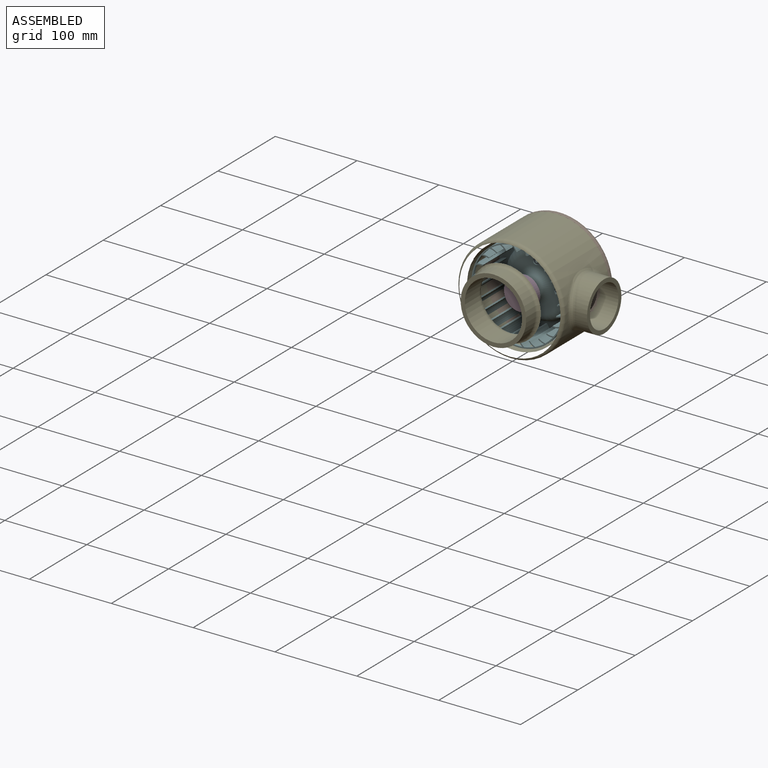
[diagram: assembled view]
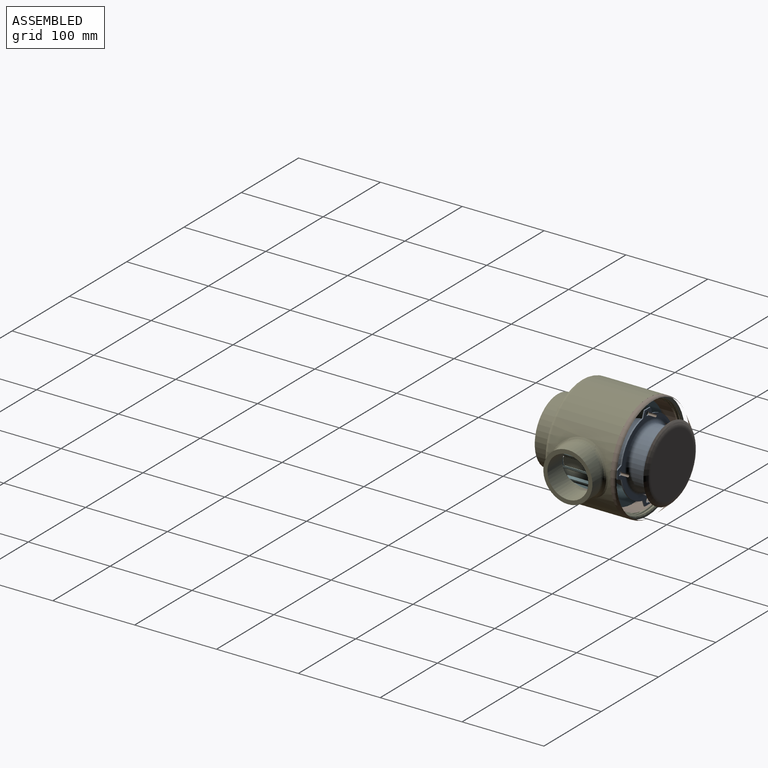
[diagram: assembled view, second angle]
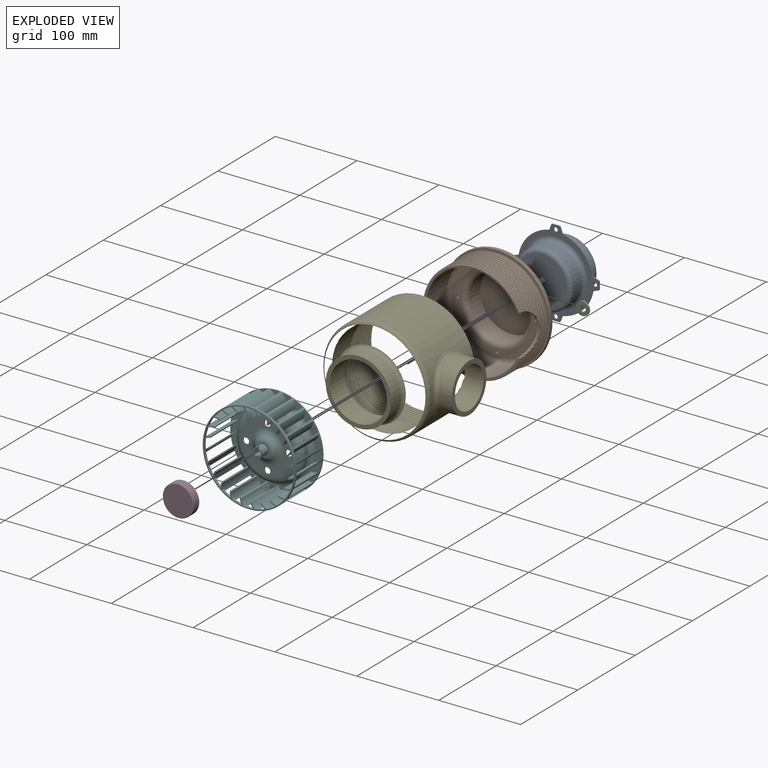
[diagram: exploded view]
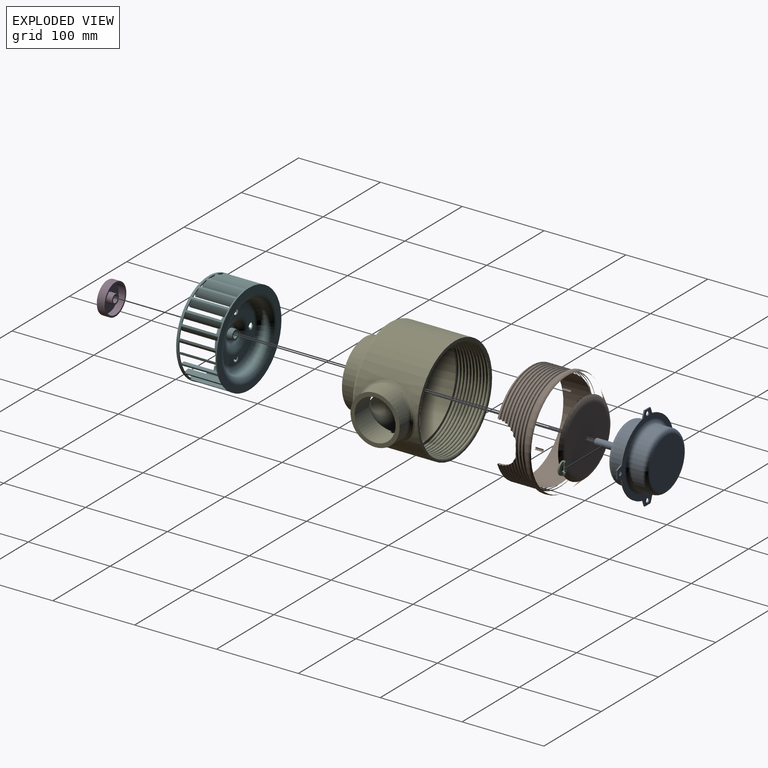
[diagram: exploded view, second angle]
ASSEMBLY  parts=6 mates=11
PART A: 34 faces, bbox 106x86x106 mm
  f0: plane 8x6mm, normal (0,-1,0), area 40.4mm2, adj f31,f32
  f1: plane 60x60mm, normal (0,-1,0), area 2777.2mm2, adj f3,f31
  f2: cylinder r=35mm len=70mm, axis (0,-1,0), area 2913.8mm2, adj f3,f30
  f3: torus R=30mm, axis (0,-1,0), area 1637.5mm2, adj f1,f2
  f4: plane 7.7x3mm, normal (-0.36,0,-0.93), area 12.4mm2, adj f5,f22,f24,f25
  f5: cylinder r=46mm len=37.3mm, axis (0,1,0), area 84.3mm2, adj f4,f6,f24,f25
  f6: plane 7.7x3mm, normal (-0.93,0,-0.36), area 12.4mm2, adj f5,f7,f24,f25
  f7: plane 10x1.5mm, normal (0,0,-1), area 15mm2, adj f6,f8,f24,f25
  f8: plane 7.7x3mm, normal (0.93,0,-0.36), area 12.4mm2, adj f7,f9,f24,f25
  f9: cylinder r=46mm len=37.3mm, axis (0,1,0), area 84.3mm2, adj f8,f10,f24,f25
  f10: plane 7.7x3mm, normal (0.36,0,-0.93), area 12.4mm2, adj f9,f11,f24,f25
  f11: plane 10x1.5mm, normal (1,0,0), area 15mm2, adj f10,f12,f24,f25
  f12: plane 7.7x3mm, normal (0.36,0,0.93), area 12.4mm2, adj f11,f13,f24,f25
  f13: cylinder r=46mm len=37.3mm, axis (0,1,0), area 84.3mm2, adj f12,f14,f24,f25
  f14: plane 7.7x3mm, normal (0.93,0,0.36), area 12.4mm2, adj f13,f15,f24,f25
  f15: plane 10x1.5mm, normal (0,0,1), area 15mm2, adj f14,f16,f24,f25
  f16: plane 7.7x3mm, normal (-0.93,0,0.36), area 12.4mm2, adj f15,f17,f24,f25
  f17: cylinder r=46mm len=37.3mm, axis (0,1,0), area 84.3mm2, adj f16,f18,f24,f25
  f18: plane 7.7x3mm, normal (-0.36,0,0.93), area 12.4mm2, adj f17,f22,f24,f25
  f19: cylinder r=2.6mm len=5.2mm, axis (0,1,0), area 24.5mm2, adj f24,f25
  f20: cylinder r=2.6mm len=5.2mm, axis (0,1,0), area 24.5mm2, adj f24,f25
  f21: cylinder r=2.6mm len=5.2mm, axis (0,1,0), area 24.5mm2, adj f24,f25
  f22: plane 10x1.5mm, normal (-1,0,0), area 15mm2, adj f4,f18,f24,f25
  f23: cylinder r=2.6mm len=5.2mm, axis (0,1,0), area 24.5mm2, adj f24,f25
  f24: plane 106x106mm, normal (0,-1,0), area 1906.6mm2, adj f4,f5,f6,f7,f8,f9,f10,f11
  f25: plane 106x106mm, normal (0,1,0), area 1906.6mm2, adj f4,f5,f6,f7,f8,f9,f10,f11
  f26: plane 60x60mm, normal (0,1,0), area 2827.4mm2, adj f27
  f27: torus R=30mm, axis (0,-1,0), area 1637.5mm2, adj f26,f28
  f28: cylinder r=35mm len=70mm, axis (0,-1,0), area 2913.8mm2, adj f27,f29
  f29: torus R=40mm, axis (0,-1,0), area 1816.8mm2, adj f25,f28
  f30: torus R=40mm, axis (0,-1,0), area 1816.8mm2, adj f2,f24
  f31: cylinder r=4mm len=38mm, axis (0,1,0), area 854.5mm2, adj f0,f1,f32,f33
  f32: plane 12x6.93mm, normal (-1,0,0), area 83.1mm2, adj f0,f31,f33
  f33: plane 6.93x2mm, normal (0,-1,0), area 9.8mm2, adj f31,f32
PART B: 37 faces, bbox 142.7x76.6x149.8 mm
  f0: cylinder r=62.5mm len=125mm, axis (0,-1,0), area 1662.2mm2, adj f1,f7,f8,f36
  f1: plane 131.94x131.94mm, normal (0,-1,0), area 1346.5mm2, adj f0,f2,f7
  f2: cylinder r=65mm len=130mm, axis (0,1,0), area 1258.4mm2, adj f1,f3
  f3: torus R=60mm, axis (0,-1,0), area 1486.4mm2, adj f2,f4
  f4: cone r=65mm half-angle=42deg, axis (0,-1,0), area 9352.1mm2, adj f3,f5
  f5: torus R=38.05mm, axis (0,1,0), area 2211.2mm2, adj f4,f6
  f6: plane 76.09x76.09mm, normal (0,1,0), area 4547.5mm2, adj f5
  f7: bspline ~147.8x128mm, area 6780.8mm2, adj f0,f1,f36
  f8: bspline ~147.8x128mm, area 1705.2mm2, adj f0,f9,f36
  f9: cylinder r=62.5mm len=125mm, axis (0,-1,0), area 360.4mm2, adj f8,f10,f36
  f10: bspline ~147.8x128mm, area 1652.5mm2, adj f9,f11,f36
  f11: cylinder r=62.5mm len=125mm, axis (0,-1,0), area 352.3mm2, adj f10,f12,f36
  f12: bspline ~147.8x128mm, area 1621.7mm2, adj f11,f13,f36
  f13: cylinder r=62.5mm len=125mm, axis (0,-1,0), area 347mm2, adj f12,f14,f36
  f14: bspline ~147.8x128mm, area 1601.5mm2, adj f13,f15,f36
  f15: cylinder r=62.5mm len=125mm, axis (0,-1,0), area 343.6mm2, adj f14,f16,f36
  f16: bspline ~147.8x128mm, area 1589.5mm2, adj f15,f17,f36
  f17: cylinder r=62.5mm len=125mm, axis (0,-1,0), area 341.8mm2, adj f16,f18,f36
  f18: bspline ~147.8x128mm, area 1574.1mm2, adj f17,f19,f21,f36
  f19: cylinder r=62.5mm len=125mm, axis (0,-1,0), area 269.1mm2, adj f18,f20,f21,f36
  f20: bspline ~129.33x128mm, area 373mm2, adj f19,f21,f36
  f21: plane 125.49x119.81mm, normal (0,-1,0), area 869.8mm2, adj f18,f19,f20,f22,f36
  f22: cylinder r=59mm len=118mm, axis (0,1,0), area 11866.4mm2, adj f21,f23,f36
  f23: torus R=54mm, axis (0,-1,0), area 2821.9mm2, adj f22,f24
  f24: plane 108x108mm, normal (0,-1,0), area 3187.9mm2, adj f23,f25,f27,f29,f31,f33
  f25: cylinder r=1.5mm len=10mm, axis (0,-1,0), area 94.2mm2, adj f24,f26
  f26: plane 3x3mm, normal (0,-1,0), area 7.1mm2, adj f25
  f27: cylinder r=1.5mm len=10mm, axis (0,-1,0), area 94.2mm2, adj f24,f28
  f28: plane 3x3mm, normal (0,-1,0), area 7.1mm2, adj f27
  f29: cylinder r=1.5mm len=10mm, axis (0,-1,0), area 94.2mm2, adj f24,f30
  f30: plane 3x3mm, normal (0,-1,0), area 7.1mm2, adj f29
  f31: cylinder r=1.5mm len=10mm, axis (0,-1,0), area 94.2mm2, adj f24,f32
  f32: plane 3x3mm, normal (0,-1,0), area 7.1mm2, adj f31
  f33: torus R=43.5mm, axis (0,-1,0), area 2349.8mm2, adj f24,f34
  f34: cylinder r=37.5mm len=75mm, axis (0,-1,0), area 4476.8mm2, adj f33,f35
  f35: plane 75x75mm, normal (0,-1,0), area 4417.9mm2, adj f34
  f36: cylinder r=25mm len=50mm, axis (1,0,0), area 230.6mm2, adj f0,f7,f8,f9,f10,f11,f12,f13
PART C: 24 faces, bbox 16x16x4.4 mm
  f0: plane 16x8mm, normal (0,0,1), area 78.7mm2, adj f2,f3,f4,f6,f9,f12,f13,f14
  f1: plane 16x8mm, normal (0,0,1), area 68.9mm2, adj f2,f4,f7,f10,f12,f13,f14,f15
  f2: cylinder r=4mm len=8mm, axis (0,0,-1), area 33.5mm2, adj f0,f1,f3,f5
  f3: plane 6.93x2mm, normal (0,-1,0), area 13.9mm2, adj f0,f2,f5
  f4: cylinder r=8mm len=16mm, axis (0,0,-1), area 100.5mm2, adj f0,f1,f5
  f5: plane 16x16mm, normal (0,0,-1), area 160.6mm2, adj f2,f3,f4
  f6: plane 2.2x1.9mm, normal (0,1,0), area 4.2mm2, adj f0,f12,f13,f23
  f7: plane 2.2x1.9mm, normal (0,-1,0), area 4.2mm2, adj f1,f12,f13,f20
  f8: plane 3x0.8mm, normal (0,0,1), area 2.3mm2, adj f20,f21,f22,f23
  f9: plane 2.2x1.9mm, normal (0,1,0), area 4.2mm2, adj f0,f14,f15,f19
  f10: plane 2.2x1.9mm, normal (0,-1,0), area 4.2mm2, adj f1,f14,f15,f16
  f11: plane 3x0.8mm, normal (0,0,1), area 2.3mm2, adj f16,f17,f18,f19
  f12: cylinder r=0.9mm len=1.9mm, axis (0,0,-1), area 5.4mm2, adj f0,f1,f6,f7,f21
  f13: cylinder r=0.9mm len=1.9mm, axis (0,0,-1), area 5.4mm2, adj f0,f1,f6,f7,f22
  f14: cylinder r=0.9mm len=1.9mm, axis (0,0,-1), area 5.4mm2, adj f0,f1,f9,f10,f17
  f15: cylinder r=0.9mm len=1.9mm, axis (0,0,-1), area 5.4mm2, adj f0,f1,f9,f10,f18
  f16: cylinder r=0.5mm len=2.2mm, axis (-1,0,0), area 1.7mm2, adj f10,f11,f17,f18
  f17: torus R=0.4mm, axis (0,0,1), area 1.8mm2, adj f11,f14,f16,f19
  f18: torus R=0.4mm, axis (0,0,1), area 1.8mm2, adj f11,f15,f16,f19
  f19: cylinder r=0.5mm len=2.2mm, axis (1,0,0), area 1.7mm2, adj f9,f11,f17,f18
  f20: cylinder r=0.5mm len=2.2mm, axis (-1,0,0), area 1.7mm2, adj f7,f8,f21,f22
  f21: torus R=0.4mm, axis (0,0,1), area 1.8mm2, adj f8,f12,f20,f23
  f22: torus R=0.4mm, axis (0,0,1), area 1.8mm2, adj f8,f13,f20,f23
  f23: cylinder r=0.5mm len=2.2mm, axis (1,0,0), area 1.7mm2, adj f6,f8,f21,f22
PART D: 10 faces, bbox 41.1x10x41.1 mm
  f0: cylinder r=19mm len=38mm, axis (0,1,0), area 1074.4mm2, adj f2,f9
  f1: plane 36x36mm, normal (0,-1,0), area 1017.9mm2, adj f9
  f2: plane 38x38mm, normal (0,1,0), area 226.2mm2, adj f0,f4
  f3: plane 34x34mm, normal (0,1,0), area 794.8mm2, adj f4,f5
  f4: cylinder r=17mm len=34mm, axis (0,1,0), area 854.5mm2, adj f2,f3
  f5: cylinder r=6mm len=12mm, axis (0,1,0), area 301.6mm2, adj f3,f8
  f6: plane 8x8mm, normal (0,1,0), area 50.3mm2, adj f7
  f7: cylinder r=4mm len=8mm, axis (0,1,0), area 201.1mm2, adj f6,f8
  f8: plane 12x12mm, normal (0,1,0), area 62.8mm2, adj f5,f7
  f9: torus R=18mm, axis (0,-1,0), area 183.9mm2, adj f0,f1
PART E: 32 faces, bbox 157.3x116.6x149.8 mm
  f0: cylinder r=62.5mm len=125mm, axis (0,-1,0), area 1662.2mm2, adj f1,f29,f30,f31
  f1: bspline ~147.8x128mm, area 1705.2mm2, adj f0,f2,f31
  f2: cylinder r=62.5mm len=125mm, axis (0,-1,0), area 360.4mm2, adj f1,f3,f31
  f3: bspline ~147.8x128mm, area 1652.5mm2, adj f2,f4,f31
  f4: cylinder r=62.5mm len=125mm, axis (0,-1,0), area 352.3mm2, adj f3,f5,f31
  f5: bspline ~147.8x128mm, area 1621.7mm2, adj f4,f6,f31
  f6: cylinder r=62.5mm len=125mm, axis (0,-1,0), area 347mm2, adj f5,f7,f31
  f7: bspline ~147.8x128mm, area 1601.5mm2, adj f6,f8,f31
  f8: cylinder r=62.5mm len=125mm, axis (0,-1,0), area 343.6mm2, adj f7,f9,f31
  f9: bspline ~147.8x128mm, area 1589.5mm2, adj f8,f10,f31
  f10: cylinder r=62.5mm len=125mm, axis (0,-1,0), area 341.8mm2, adj f9,f11,f31
  f11: bspline ~147.8x128mm, area 1573.2mm2, adj f10,f12,f28,f31
  f12: plane 125.49x119.81mm, normal (0,1,0), area 869.8mm2, adj f11,f13,f14,f28,f31
  f13: bspline ~129.33x128mm, area 373mm2, adj f12,f28,f31
  f14: cylinder r=59mm len=118mm, axis (0,1,0), area 10219mm2, adj f12,f15,f31
  f15: torus R=54mm, axis (0,-1,0), area 2821.9mm2, adj f14,f16
  f16: plane 108x108mm, normal (0,1,0), area 2799.2mm2, adj f15,f17
  f17: torus R=45mm, axis (0,-1,0), area 3813mm2, adj f16,f18
  f18: cylinder r=35mm len=70mm, axis (0,-1,0), area 5497.8mm2, adj f17,f19
  f19: plane 80x80mm, normal (0,-1,0), area 1178.1mm2, adj f18,f20
  f20: cylinder r=40mm len=80mm, axis (0,1,0), area 4175.8mm2, adj f19,f21
  f21: torus R=45mm, axis (0,1,0), area 1536.9mm2, adj f20,f22
  f22: cone r=40mm half-angle=68.2deg, axis (0,1,0), area 6648.6mm2, adj f21,f23
  f23: torus R=60mm, axis (0,-1,0), area 2389.5mm2, adj f22,f24
  f24: cylinder r=65mm len=130mm, axis (0,1,0), area 27574.4mm2, adj f23,f25,f29
  f25: bspline ~70.01x65.02mm, area 1312.6mm2, adj f24,f26
  f26: cylinder r=30mm len=60mm, axis (1,0,0), area 3693.6mm2, adj f25,f27
  f27: plane 60x60mm, normal (1,0,0), area 863.9mm2, adj f26,f31
  f28: cylinder r=62.5mm len=125mm, axis (0,-1,0), area 269.1mm2, adj f11,f12,f13,f31
  f29: plane 131.94x131.94mm, normal (0,1,0), area 1346.5mm2, adj f0,f24,f30
  f30: bspline ~147.8x128mm, area 6780.8mm2, adj f0,f29,f31
  f31: cylinder r=25mm len=50mm, axis (1,0,0), area 4283.7mm2, adj f0,f1,f2,f3,f4,f5,f6,f7
PART F: 199 faces, bbox 116.2x116.2x49.5 mm
  f0: cylinder r=3.75mm len=7.5mm, axis (0,0,-1), area 35.3mm2, adj f80,f86
  f1: cylinder r=3.75mm len=7.5mm, axis (0,0,-1), area 35.3mm2, adj f80,f86
  f2: cylinder r=3.75mm len=7.5mm, axis (0,0,-1), area 35.3mm2, adj f80,f86
  f3: plane 11.78x4.85mm, normal (0,0,-1), area 26.8mm2, adj f92,f94,f194,f195
  f4: cylinder r=15mm len=48mm, axis (0,0,1), area 511.4mm2, adj f75,f76,f95,f96,f120,f121
  f5: cylinder r=16.5mm len=48mm, axis (0,0,1), area 495.4mm2, adj f74,f76,f95,f96,f189,f191
  f6: cylinder r=15mm len=48mm, axis (0,0,1), area 511.4mm2, adj f74,f76,f96,f97,f189,f191
  f7: cylinder r=16.5mm len=48mm, axis (0,0,1), area 495.4mm2, adj f73,f76,f96,f97,f186,f187
  f8: cylinder r=15mm len=48mm, axis (0,0,1), area 511.4mm2, adj f73,f76,f96,f98,f186,f187
  f9: cylinder r=16.5mm len=48mm, axis (0,0,1), area 495.4mm2, adj f72,f76,f96,f98,f183,f184
  f10: cylinder r=15mm len=48mm, axis (0,0,1), area 511.4mm2, adj f72,f76,f96,f99,f183,f184
  f11: cylinder r=16.5mm len=48mm, axis (0,0,1), area 495.4mm2, adj f71,f76,f96,f99,f180,f181
  f12: cylinder r=15mm len=48mm, axis (0,0,1), area 511.4mm2, adj f71,f76,f96,f100,f180,f181
  f13: cylinder r=16.5mm len=48mm, axis (0,0,1), area 495.4mm2, adj f70,f76,f96,f100,f177,f178
  f14: cylinder r=15mm len=48mm, axis (0,0,1), area 511.4mm2, adj f70,f76,f96,f101,f177,f178
  f15: cylinder r=16.5mm len=48mm, axis (0,0,1), area 495.4mm2, adj f69,f76,f96,f101,f174,f175
  f16: cylinder r=15mm len=48mm, axis (0,0,1), area 511.4mm2, adj f69,f76,f96,f102,f174,f175
  f17: cylinder r=16.5mm len=48mm, axis (0,0,1), area 495.4mm2, adj f68,f76,f96,f102,f171,f172
  f18: cylinder r=15mm len=48mm, axis (0,0,1), area 511.4mm2, adj f68,f76,f96,f103,f171,f172
  f19: cylinder r=16.5mm len=48mm, axis (0,0,1), area 495.4mm2, adj f67,f76,f96,f103,f168,f169
  f20: cylinder r=15mm len=48mm, axis (0,0,1), area 511.4mm2, adj f67,f76,f96,f104,f168,f169
  f21: cylinder r=16.5mm len=48mm, axis (0,0,1), area 495.4mm2, adj f66,f76,f96,f104,f165,f166
  f22: cylinder r=15mm len=48mm, axis (0,0,1), area 511.4mm2, adj f66,f76,f96,f105,f165,f166
  f23: cylinder r=16.5mm len=48mm, axis (0,0,1), area 495.4mm2, adj f65,f76,f96,f105,f162,f163
  f24: cylinder r=15mm len=48mm, axis (0,0,1), area 511.4mm2, adj f65,f76,f96,f106,f162,f163
  f25: cylinder r=16.5mm len=48mm, axis (0,0,1), area 495.4mm2, adj f64,f76,f96,f106,f159,f160
  f26: cylinder r=15mm len=48mm, axis (0,0,1), area 511.4mm2, adj f64,f76,f96,f107,f159,f160
  f27: cylinder r=16.5mm len=48mm, axis (0,0,1), area 495.4mm2, adj f63,f76,f96,f107,f156,f157
  f28: cylinder r=15mm len=48mm, axis (0,0,1), area 511.4mm2, adj f63,f76,f96,f108,f156,f157
  f29: cylinder r=16.5mm len=48mm, axis (0,0,1), area 495.4mm2, adj f62,f76,f96,f108,f153,f154
  f30: cylinder r=15mm len=48mm, axis (0,0,1), area 511.4mm2, adj f62,f76,f96,f109,f153,f154
  f31: cylinder r=16.5mm len=48mm, axis (0,0,1), area 495.4mm2, adj f61,f76,f96,f109,f150,f151
  f32: cylinder r=15mm len=48mm, axis (0,0,1), area 511.4mm2, adj f61,f76,f96,f110,f150,f151
  f33: cylinder r=16.5mm len=48mm, axis (0,0,1), area 495.4mm2, adj f60,f76,f96,f110,f147,f148
  f34: cylinder r=15mm len=48mm, axis (0,0,1), area 511.4mm2, adj f60,f76,f96,f111,f147,f148
  f35: cylinder r=16.5mm len=48mm, axis (0,0,1), area 495.4mm2, adj f59,f76,f96,f111,f144,f145
  f36: cylinder r=15mm len=48mm, axis (0,0,1), area 511.4mm2, adj f59,f76,f96,f112,f144,f145
  f37: cylinder r=16.5mm len=48mm, axis (0,0,1), area 495.4mm2, adj f58,f76,f96,f112,f141,f142
  f38: cylinder r=15mm len=48mm, axis (0,0,1), area 511.4mm2, adj f58,f76,f96,f113,f141,f142
  f39: cylinder r=16.5mm len=48mm, axis (0,0,1), area 495.4mm2, adj f57,f76,f96,f113,f138,f139
  f40: cylinder r=15mm len=48mm, axis (0,0,1), area 511.4mm2, adj f57,f76,f96,f114,f138,f139
  f41: cylinder r=16.5mm len=48mm, axis (0,0,1), area 495.4mm2, adj f56,f76,f96,f114,f135,f136
  f42: cylinder r=15mm len=48mm, axis (0,0,1), area 511.4mm2, adj f56,f76,f96,f115,f135,f136
  f43: cylinder r=16.5mm len=48mm, axis (0,0,1), area 495.4mm2, adj f55,f76,f96,f115,f132,f133
  f44: cylinder r=15mm len=48mm, axis (0,0,1), area 511.4mm2, adj f55,f76,f96,f116,f132,f133
  f45: cylinder r=16.5mm len=48mm, axis (0,0,1), area 495.4mm2, adj f54,f76,f96,f116,f129,f130
  f46: cylinder r=15mm len=48mm, axis (0,0,1), area 511.4mm2, adj f54,f76,f96,f117,f129,f130
  f47: cylinder r=16.5mm len=48mm, axis (0,0,1), area 495.4mm2, adj f53,f76,f96,f117,f126,f127
  f48: cylinder r=15mm len=48mm, axis (0,0,1), area 511.4mm2, adj f53,f76,f96,f118,f126,f127
  f49: cylinder r=16.5mm len=48mm, axis (0,0,1), area 495.4mm2, adj f52,f76,f96,f118,f123,f124
  f50: cylinder r=15mm len=48mm, axis (0,0,1), area 511.4mm2, adj f52,f76,f96,f119,f123,f124
  f51: cylinder r=16.5mm len=48mm, axis (0,0,1), area 495.4mm2, adj f75,f76,f96,f119,f120,f121
  f52: plane 19.09x9.55mm, normal (0,0,-1), area 100.4mm2, adj f49,f50,f76,f82
  f53: plane 19.54x10.14mm, normal (0,0,-1), area 100.4mm2, adj f47,f48,f76,f82
  f54: plane 18.65x10.08mm, normal (0,0,-1), area 100.4mm2, adj f45,f46,f76,f82
  f55: plane 16.49x11.64mm, normal (0,0,-1), area 100.4mm2, adj f43,f44,f76,f82
  f56: plane 14.55x13.21mm, normal (0,0,-1), area 100.4mm2, adj f41,f42,f76,f82
  f57: plane 17.35x9.53mm, normal (0,0,-1), area 100.4mm2, adj f39,f40,f76,f82
  f58: plane 19.09x9.55mm, normal (0,0,-1), area 100.4mm2, adj f37,f38,f76,f82
  f59: plane 19.54x10.14mm, normal (0,0,-1), area 100.4mm2, adj f35,f36,f76,f82
  f60: plane 18.65x10.08mm, normal (0,0,-1), area 100.4mm2, adj f33,f34,f76,f82
  f61: plane 16.49x11.64mm, normal (0,0,-1), area 100.4mm2, adj f31,f32,f76,f82
  f62: plane 14.55x13.21mm, normal (0,0,-1), area 100.4mm2, adj f29,f30,f76,f82
  f63: plane 17.35x9.53mm, normal (0,0,-1), area 100.4mm2, adj f27,f28,f76,f82
  f64: plane 19.09x9.55mm, normal (0,0,-1), area 100.4mm2, adj f25,f26,f76,f82
  f65: plane 19.54x10.14mm, normal (0,0,-1), area 100.4mm2, adj f23,f24,f76,f82
  f66: plane 18.65x10.08mm, normal (0,0,-1), area 100.4mm2, adj f21,f22,f76,f82
  f67: plane 16.49x11.64mm, normal (0,0,-1), area 100.4mm2, adj f19,f20,f76,f82
  f68: plane 14.55x13.21mm, normal (0,0,-1), area 100.4mm2, adj f17,f18,f76,f82
  f69: plane 17.35x9.53mm, normal (0,0,-1), area 100.4mm2, adj f15,f16,f76,f82
  f70: plane 19.09x9.55mm, normal (0,0,-1), area 100.4mm2, adj f13,f14,f76,f82
  f71: plane 19.54x10.14mm, normal (0,0,-1), area 100.4mm2, adj f11,f12,f76,f82
  f72: plane 18.65x10.08mm, normal (0,0,-1), area 100.4mm2, adj f9,f10,f76,f82
  f73: plane 16.49x11.64mm, normal (0,0,-1), area 100.4mm2, adj f7,f8,f76,f82
  f74: plane 14.55x13.21mm, normal (0,0,-1), area 100.4mm2, adj f5,f6,f76,f82
  f75: plane 17.35x9.53mm, normal (0,0,-1), area 100.4mm2, adj f4,f51,f76,f82
  f76: cylinder r=56.5mm len=113mm, axis (0,0,-1), area 3307mm2, adj f4,f5,f6,f7,f8,f9,f10,f11
  f77: plane 14.32x14.32mm, normal (0,0,-1), area 48mm2, adj f78,f92
  f78: torus R=7.16mm, axis (0,0,1), area 384.8mm2, adj f77,f79
  f79: torus R=20.91mm, axis (0,0,-1), area 1014.1mm2, adj f78,f80
  f80: plane 64x64mm, normal (0,0,-1), area 1666.9mm2, adj f0,f1,f2,f79,f81,f198
  f81: torus R=32mm, axis (0,0,-1), area 3567.4mm2, adj f80,f82
  f82: torus R=48mm, axis (0,0,-1), area 2813.9mm2, adj f52,f53,f54,f55,f56,f57,f58,f59
  f83: plane 14.32x14.32mm, normal (0,0,1), area 48mm2, adj f84,f91
  f84: torus R=7.16mm, axis (0,0,1), area 276.6mm2, adj f83,f85
  f85: torus R=20.91mm, axis (0,0,-1), area 1112.4mm2, adj f84,f86
  f86: plane 64x64mm, normal (0,0,1), area 1666.9mm2, adj f0,f1,f2,f85,f87,f198
  f87: torus R=32mm, axis (0,0,-1), area 2928.7mm2, adj f86,f88
  f88: torus R=48mm, axis (0,0,-1), area 3387.8mm2, adj f87,f89
  f89: plane 113x113mm, normal (0,0,1), area 2790.5mm2, adj f76,f88
  f90: plane 12x12mm, normal (0,0,1), area 62.8mm2, adj f91,f94
  f91: cylinder r=6mm len=12mm, axis (0,0,-1), area 245mm2, adj f83,f90
  f92: cylinder r=6mm len=12mm, axis (0,0,-1), area 379.6mm2, adj f3,f77,f93,f192,f193,f194,f195,f196
  f93: plane 11.78x4.85mm, normal (0,0,-1), area 26.8mm2, adj f92,f94,f193,f196
  f94: cylinder r=4mm len=18.5mm, axis (0,0,1), area 448.6mm2, adj f3,f90,f93,f192,f193,f194,f195,f196
  f95: cylinder r=48mm len=48mm, axis (0,0,1), area 76.3mm2, adj f4,f5,f82,f96
  f96: plane 113.04x113.04mm, normal (0,0,-1), area 826.4mm2, adj f4,f5,f6,f7,f8,f9,f10,f11
  f97: cylinder r=48mm len=48mm, axis (0,0,1), area 76.3mm2, adj f6,f7,f82,f96
  f98: cylinder r=48mm len=48mm, axis (0,0,1), area 76.3mm2, adj f8,f9,f82,f96
  f99: cylinder r=48mm len=48mm, axis (0,0,1), area 76.3mm2, adj f10,f11,f82,f96
  f100: cylinder r=48mm len=48mm, axis (0,0,1), area 76.3mm2, adj f12,f13,f82,f96
  f101: cylinder r=48mm len=48mm, axis (0,0,1), area 76.3mm2, adj f14,f15,f82,f96
  f102: cylinder r=48mm len=48mm, axis (0,0,1), area 76.3mm2, adj f16,f17,f82,f96
  f103: cylinder r=48mm len=48mm, axis (0,0,1), area 76.3mm2, adj f18,f19,f82,f96
  f104: cylinder r=48mm len=48mm, axis (0,0,1), area 76.3mm2, adj f20,f21,f82,f96
  f105: cylinder r=48mm len=48mm, axis (0,0,1), area 76.3mm2, adj f22,f23,f82,f96
  f106: cylinder r=48mm len=48mm, axis (0,0,1), area 76.3mm2, adj f24,f25,f82,f96
  f107: cylinder r=48mm len=48mm, axis (0,0,1), area 76.3mm2, adj f26,f27,f82,f96
  f108: cylinder r=48mm len=48mm, axis (0,0,1), area 76.3mm2, adj f28,f29,f82,f96
  f109: cylinder r=48mm len=48mm, axis (0,0,1), area 76.3mm2, adj f30,f31,f82,f96
  f110: cylinder r=48mm len=48mm, axis (0,0,1), area 76.3mm2, adj f32,f33,f82,f96
  f111: cylinder r=48mm len=48mm, axis (0,0,1), area 76.3mm2, adj f34,f35,f82,f96
  f112: cylinder r=48mm len=48mm, axis (0,0,1), area 76.3mm2, adj f36,f37,f82,f96
  f113: cylinder r=48mm len=48mm, axis (0,0,1), area 76.3mm2, adj f38,f39,f82,f96
  f114: cylinder r=48mm len=48mm, axis (0,0,1), area 76.3mm2, adj f40,f41,f82,f96
  f115: cylinder r=48mm len=48mm, axis (0,0,1), area 76.3mm2, adj f42,f43,f82,f96
  f116: cylinder r=48mm len=48mm, axis (0,0,1), area 76.3mm2, adj f44,f45,f82,f96
  f117: cylinder r=48mm len=48mm, axis (0,0,1), area 76.3mm2, adj f46,f47,f82,f96
  f118: cylinder r=48mm len=48mm, axis (0,0,1), area 76.3mm2, adj f48,f49,f82,f96
  f119: cylinder r=48mm len=48mm, axis (0,0,1), area 76.3mm2, adj f50,f51,f82,f96
  f120: plane 14.02x1.91mm, normal (0,0,1), area 18.5mm2, adj f4,f51,f121,f122
  f121: cylinder r=55mm len=12.25mm, axis (0,0,-1), area 36.8mm2, adj f4,f51,f96,f120
  f122: extruded ~12.36x3mm, area 37.1mm2, adj f76,f96,f120
  f123: plane 13.9x4.31mm, normal (0,0,1), area 18.5mm2, adj f49,f50,f124,f125
  f124: cylinder r=55mm len=11.86mm, axis (0,0,-1), area 36.8mm2, adj f49,f50,f96,f123
  f125: extruded ~11.86x3.47mm, area 37.1mm2, adj f76,f96,f123
  f126: plane 12.84x6.71mm, normal (0,0,1), area 18.5mm2, adj f47,f48,f127,f128
  f127: cylinder r=55mm len=10.66mm, axis (0,0,-1), area 36.8mm2, adj f47,f48,f96,f126
  f128: extruded ~10.56x6.43mm, area 37.2mm2, adj f76,f96,f126
  f129: plane 10.9x9mm, normal (0,0,1), area 18.5mm2, adj f45,f46,f130,f131
  f130: cylinder r=55mm len=8.73mm, axis (0,0,-1), area 36.8mm2, adj f45,f46,f96,f129
  f131: extruded ~8.94x8.53mm, area 37.1mm2, adj f76,f96,f129
  f132: plane 11.45x8.23mm, normal (0,0,1), area 18.5mm2, adj f43,f44,f133,f134
  f133: cylinder r=55mm len=10.57mm, axis (0,0,-1), area 36.8mm2, adj f43,f44,f96,f132
  f134: extruded ~10.84x5.93mm, area 37.1mm2, adj f76,f96,f132
  f135: plane 13.18x4.99mm, normal (0,0,1), area 18.5mm2, adj f41,f42,f136,f137
  f136: cylinder r=55mm len=11.81mm, axis (0,0,-1), area 36.8mm2, adj f41,f42,f96,f135
  f137: extruded ~12.01x3mm, area 37.1mm2, adj f76,f96,f135
  f138: plane 14.02x1.9mm, normal (0,0,1), area 18.5mm2, adj f39,f40,f139,f140
  f139: cylinder r=55mm len=12.25mm, axis (0,0,-1), area 36.8mm2, adj f39,f40,f96,f138
  f140: extruded ~12.36x3mm, area 37.1mm2, adj f76,f96,f138
  f141: plane 13.9x4.31mm, normal (0,0,1), area 18.5mm2, adj f37,f38,f142,f143
  f142: cylinder r=55mm len=11.86mm, axis (0,0,-1), area 36.8mm2, adj f37,f38,f96,f141
  f143: extruded ~11.86x3.47mm, area 37.2mm2, adj f76,f96,f141
  f144: plane 12.84x6.71mm, normal (0,0,1), area 18.5mm2, adj f35,f36,f145,f146
  f145: cylinder r=55mm len=10.66mm, axis (0,0,-1), area 36.8mm2, adj f35,f36,f96,f144
  f146: extruded ~10.56x6.43mm, area 37.1mm2, adj f76,f96,f144
  f147: plane 10.9x9mm, normal (0,0,1), area 18.5mm2, adj f33,f34,f148,f149
  f148: cylinder r=55mm len=8.73mm, axis (0,0,-1), area 36.8mm2, adj f33,f34,f96,f147
  f149: extruded ~8.94x8.53mm, area 37.1mm2, adj f76,f96,f147
  f150: plane 11.45x8.23mm, normal (0,0,1), area 18.5mm2, adj f31,f32,f151,f152
  f151: cylinder r=55mm len=10.57mm, axis (0,0,-1), area 36.8mm2, adj f31,f32,f96,f150
  f152: extruded ~10.84x5.93mm, area 37.1mm2, adj f76,f96,f150
  f153: plane 13.18x4.99mm, normal (0,0,1), area 18.5mm2, adj f29,f30,f154,f155
  f154: cylinder r=55mm len=11.81mm, axis (0,0,-1), area 36.8mm2, adj f29,f30,f96,f153
  f155: extruded ~12.01x3mm, area 37.1mm2, adj f76,f96,f153
  f156: plane 14.02x1.9mm, normal (0,0,1), area 18.5mm2, adj f27,f28,f157,f158
  f157: cylinder r=55mm len=12.25mm, axis (0,0,-1), area 36.8mm2, adj f27,f28,f96,f156
  f158: extruded ~12.36x3mm, area 37.1mm2, adj f76,f96,f156
  f159: plane 13.9x4.31mm, normal (0,0,1), area 18.5mm2, adj f25,f26,f160,f161
  f160: cylinder r=55mm len=11.86mm, axis (0,0,-1), area 36.8mm2, adj f25,f26,f96,f159
  f161: extruded ~11.86x3.47mm, area 37.1mm2, adj f76,f96,f159
  f162: plane 12.84x6.71mm, normal (0,0,1), area 18.5mm2, adj f23,f24,f163,f164
  f163: cylinder r=55mm len=10.66mm, axis (0,0,-1), area 36.8mm2, adj f23,f24,f96,f162
  f164: extruded ~10.56x6.43mm, area 37.1mm2, adj f76,f96,f162
  f165: plane 10.9x9mm, normal (0,0,1), area 18.5mm2, adj f21,f22,f166,f167
  f166: cylinder r=55mm len=8.73mm, axis (0,0,-1), area 36.8mm2, adj f21,f22,f96,f165
  f167: extruded ~8.94x8.53mm, area 37.1mm2, adj f76,f96,f165
  f168: plane 11.45x8.23mm, normal (0,0,1), area 18.5mm2, adj f19,f20,f169,f170
  f169: cylinder r=55mm len=10.57mm, axis (0,0,-1), area 36.8mm2, adj f19,f20,f96,f168
  f170: extruded ~10.84x5.93mm, area 37.1mm2, adj f76,f96,f168
  f171: plane 13.18x4.99mm, normal (0,0,1), area 18.5mm2, adj f17,f18,f172,f173
  f172: cylinder r=55mm len=11.81mm, axis (0,0,-1), area 36.8mm2, adj f17,f18,f96,f171
  f173: extruded ~12.01x3mm, area 37.2mm2, adj f76,f96,f171
  f174: plane 14.02x1.91mm, normal (0,0,1), area 18.5mm2, adj f15,f16,f175,f176
  f175: cylinder r=55mm len=12.25mm, axis (0,0,-1), area 36.8mm2, adj f15,f16,f96,f174
  f176: extruded ~12.36x3mm, area 37.1mm2, adj f76,f96,f174
  f177: plane 13.9x4.31mm, normal (0,0,1), area 18.5mm2, adj f13,f14,f178,f179
  f178: cylinder r=55mm len=11.86mm, axis (0,0,-1), area 36.8mm2, adj f13,f14,f96,f177
  f179: extruded ~11.86x3.47mm, area 37.2mm2, adj f76,f96,f177
  f180: plane 12.84x6.71mm, normal (0,0,1), area 18.5mm2, adj f11,f12,f181,f182
  f181: cylinder r=55mm len=10.66mm, axis (0,0,-1), area 36.8mm2, adj f11,f12,f96,f180
  f182: extruded ~10.56x6.43mm, area 37.1mm2, adj f76,f96,f180
  f183: plane 10.9x9mm, normal (0,0,1), area 18.5mm2, adj f9,f10,f184,f185
  f184: cylinder r=55mm len=8.73mm, axis (0,0,-1), area 36.8mm2, adj f9,f10,f96,f183
  f185: extruded ~8.94x8.53mm, area 37.2mm2, adj f76,f96,f183
  f186: plane 11.45x8.23mm, normal (0,0,1), area 18.5mm2, adj f7,f8,f187,f188
  f187: cylinder r=55mm len=10.57mm, axis (0,0,-1), area 36.8mm2, adj f7,f8,f96,f186
  f188: extruded ~10.84x5.93mm, area 37.1mm2, adj f76,f96,f186
  f189: plane 13.18x4.99mm, normal (0,0,1), area 18.5mm2, adj f5,f6,f190,f191
  f190: extruded ~12.01x3mm, area 37.1mm2, adj f76,f96,f189
  f191: cylinder r=55mm len=11.81mm, axis (0,0,-1), area 36.8mm2, adj f5,f6,f96,f189
  f192: plane 2.3x2.17mm, normal (0,0,-1), area 4.6mm2, adj f92,f94,f193,f194
  f193: plane 3.5x2.06mm, normal (0,-1,0), area 7.2mm2, adj f92,f93,f94,f192
  f194: plane 3.5x2.06mm, normal (0,1,0), area 7.2mm2, adj f3,f92,f94,f192
  f195: plane 3.5x2.06mm, normal (0,1,0), area 7.2mm2, adj f3,f92,f94,f197
  f196: plane 3.5x2.06mm, normal (0,-1,0), area 7.2mm2, adj f92,f93,f94,f197
  f197: plane 2.3x2.17mm, normal (0,0,-1), area 4.6mm2, adj f92,f94,f195,f196
  f198: cylinder r=3.75mm len=7.5mm, axis (0,0,-1), area 35.3mm2, adj f80,f86
PLACE A t=(0,-24,0)mm
PLACE B t=(0,-23.25,0)mm
PLACE C rot(axis=(-0.58,0.58,0.58),120deg) t=(0,-78.5,0)mm
PLACE D t=(0,-78.5,0)mm
PLACE E t=(0,-23.25,0)mm
PLACE F rot(axis=(-0.58,-0.58,-0.58),120deg) t=(0,-41.5,0)mm
MATE revolute B.f31 <-> A.f20  axis (0,-1,0) through (0,-23.25,48)mm
MATE slider A.f31 <-> D.f7  axis (0,1,0) through (0,-67,0)mm
MATE planar A.f31 <-> F.f91  axis (0,-1,0) through (0,-86,0)mm
MATE planar C.f3 <-> A.f32  axis (1,0,0) through (-2,-77.5,0)mm
MATE planar D.f5 <-> C.f5  axis (0,1,0) through (0,-78.5,0)mm
MATE parallel C.f3 <-> F.f194  axis (1,0,0) through (-2,-77.5,0)mm
MATE revolute B.f25 <-> A.f19  axis (0,-1,0) through (48,-23.25,0)mm
MATE revolute E.f24 <-> B.f2  axis (0,1,0) through (0,-23.25,0)mm
MATE slider F.f91 <-> A.f31  axis (0,-1,0) through (0,-71.25,0)mm
MATE planar C.f0 <-> F.f93  axis (0,1,0) through (-4.11,-76.5,0)mm
MATE slider C.f4 <-> F.f91  axis (0,-1,0) through (0,-78.5,0)mm
